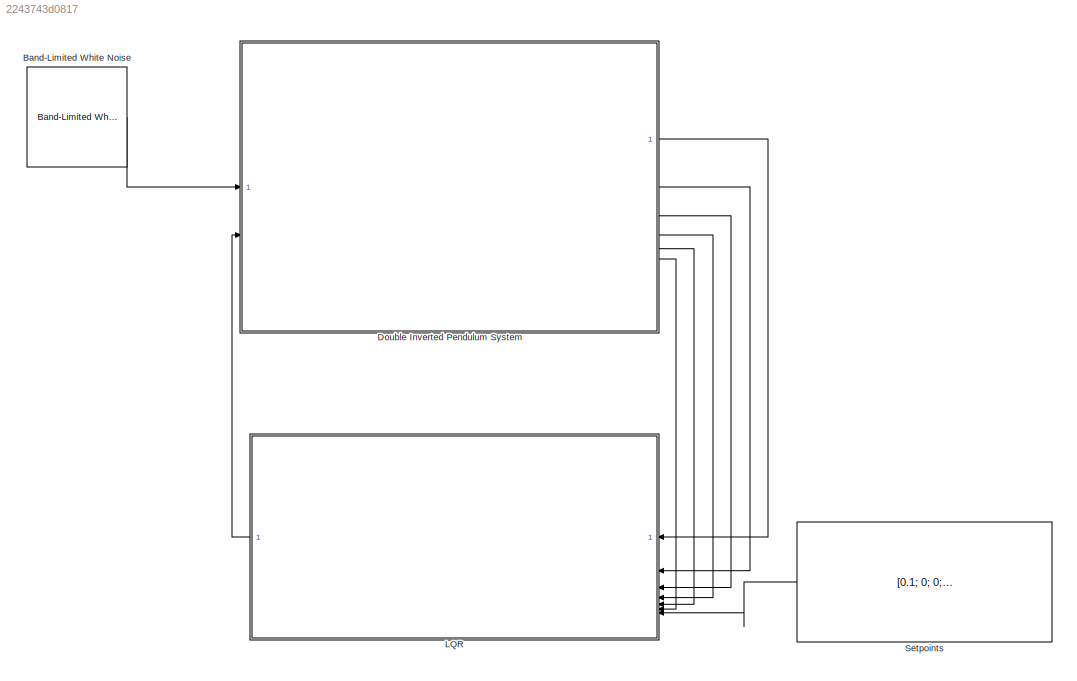
MODEL slx_2243743d0817
KIND model
CONFIG AbsTol = auto
CONFIG EnableMultiTasking = off
CONFIG FixedStep = auto
CONFIG MaxStep = auto
CONFIG MinStep = auto
CONFIG RelTol = 1e-3
CONFIG SampleTimeConstraint = Unconstrained
CONFIG SolverName = VariableStepAuto
CONFIG StartTime = 0.0
CONFIG StopTime = 20
BLOCK [Reference] Band-Limited White Noise  REF=simulink/Sources/Band-Limited
White Noise
  SourceBlock = simulink/Sources/Band-Limited\nWhite Noise
  SourceType = Band-Limited White Noise.
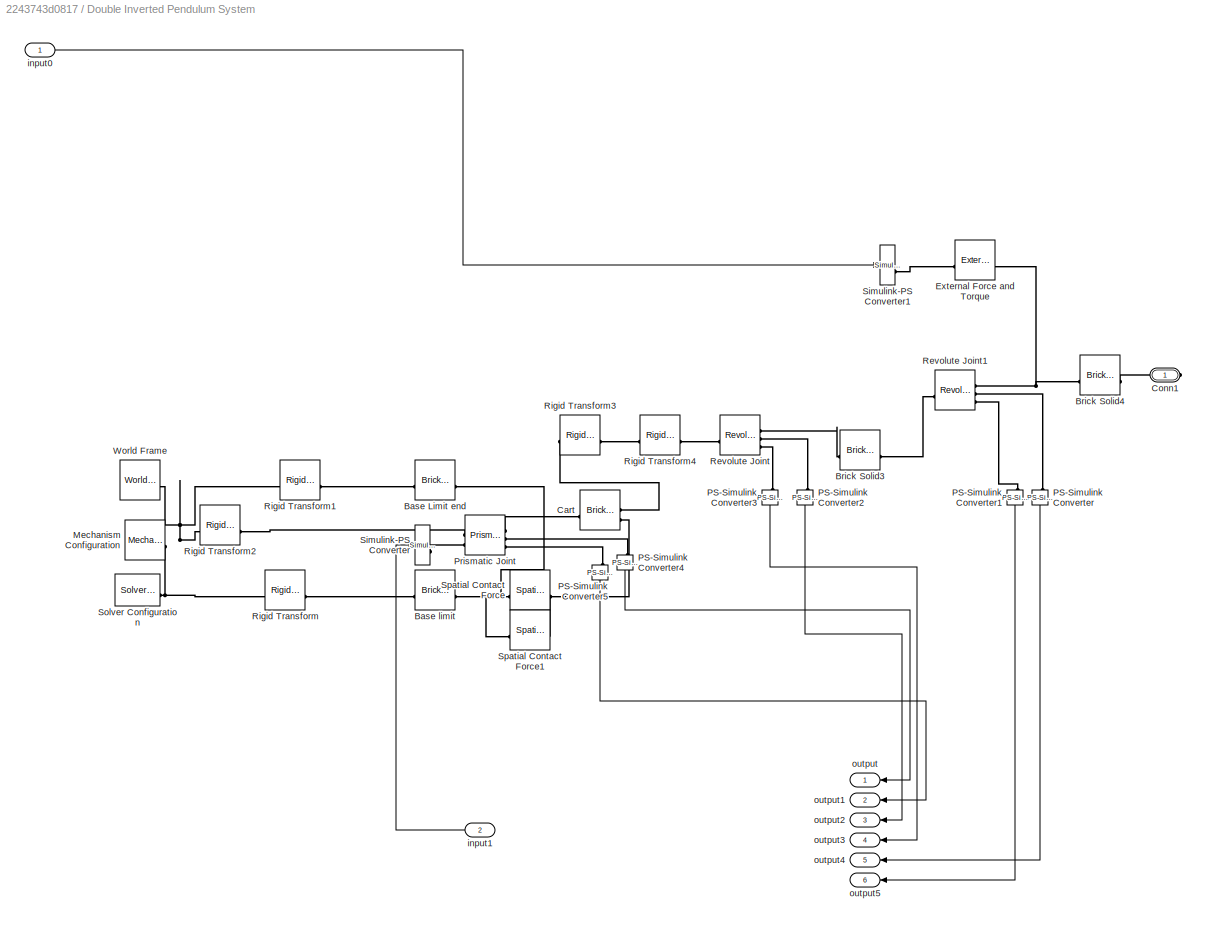
BLOCK [SubSystem] Double Inverted Pendulum System
BLOCK [Reference] Double Inverted Pendulum System/Base Limit end  REF=sm_lib/Body Elements/Brick Solid
  NameLocation = top
  SourceBlock = sm_lib/Body Elements/Brick Solid
  SourceType = Brick Solid
BLOCK [Reference] Double Inverted Pendulum System/Base limit  REF=sm_lib/Body Elements/Brick Solid
  NameLocation = top
  SourceBlock = sm_lib/Body Elements/Brick Solid
  SourceType = Brick Solid
BLOCK [Reference] Double Inverted Pendulum System/Brick Solid3  REF=sm_lib/Body Elements/Brick Solid
  SourceBlock = sm_lib/Body Elements/Brick Solid
  SourceType = Brick Solid
BLOCK [Reference] Double Inverted Pendulum System/Brick Solid4  REF=sm_lib/Body Elements/Brick Solid
  SourceBlock = sm_lib/Body Elements/Brick Solid
  SourceType = Brick Solid
BLOCK [Reference] Double Inverted Pendulum System/Cart  REF=sm_lib/Body Elements/Brick Solid
  NameLocation = top
  SourceBlock = sm_lib/Body Elements/Brick Solid
  SourceType = Brick Solid
BLOCK [PMIOPort] Double Inverted Pendulum System/Conn1
  Side = Right
BLOCK [Reference] Double Inverted Pendulum System/External Force and Torque  REF=sm_lib/Forces and
Torques/External Force
and Torque
  SourceBlock = sm_lib/Forces and\nTorques/External Force\nand Torque
  SourceType = External Force\nand Torque
BLOCK [Reference] Double Inverted Pendulum System/Mechanism Configuration  REF=sm_lib/Utilities/Mechanism
Configuration
  SourceBlock = sm_lib/Utilities/Mechanism\nConfiguration
  SourceType = Mechanism\nConfiguration
BLOCK [Reference] Double Inverted Pendulum System/PS-Simulink Converter  REF=nesl_utility/PS-Simulink
Converter
  NameLocation = left
  SourceBlock = nesl_utility/PS-Simulink\nConverter
  SourceType = PS-Simulink\nConverter
BLOCK [Reference] Double Inverted Pendulum System/PS-Simulink Converter1  REF=nesl_utility/PS-Simulink
Converter
  NameLocation = left
  SourceBlock = nesl_utility/PS-Simulink\nConverter
  SourceType = PS-Simulink\nConverter
BLOCK [Reference] Double Inverted Pendulum System/PS-Simulink Converter2  REF=nesl_utility/PS-Simulink
Converter
  NameLocation = left
  SourceBlock = nesl_utility/PS-Simulink\nConverter
  SourceType = PS-Simulink\nConverter
BLOCK [Reference] Double Inverted Pendulum System/PS-Simulink Converter3  REF=nesl_utility/PS-Simulink
Converter
  NameLocation = left
  SourceBlock = nesl_utility/PS-Simulink\nConverter
  SourceType = PS-Simulink\nConverter
BLOCK [Reference] Double Inverted Pendulum System/PS-Simulink Converter4  REF=nesl_utility/PS-Simulink
Converter
  NameLocation = left
  SourceBlock = nesl_utility/PS-Simulink\nConverter
  SourceType = PS-Simulink\nConverter
BLOCK [Reference] Double Inverted Pendulum System/PS-Simulink Converter5  REF=nesl_utility/PS-Simulink
Converter
  NameLocation = left
  SourceBlock = nesl_utility/PS-Simulink\nConverter
  SourceType = PS-Simulink\nConverter
BLOCK [Reference] Double Inverted Pendulum System/Prismatic Joint  REF=sm_lib/Joints/Prismatic
Joint
  SourceBlock = sm_lib/Joints/Prismatic\nJoint
  SourceType = Prismatic\nJoint
BLOCK [Reference] Double Inverted Pendulum System/Revolute Joint  REF=sm_lib/Joints/Revolute Joint
  SourceBlock = sm_lib/Joints/Revolute Joint
  SourceType = Revolute Joint
BLOCK [Reference] Double Inverted Pendulum System/Revolute Joint1  REF=sm_lib/Joints/Revolute Joint
  SourceBlock = sm_lib/Joints/Revolute Joint
  SourceType = Revolute Joint
BLOCK [Reference] Double Inverted Pendulum System/Rigid Transform  REF=sm_lib/Frames and
Transforms/Rigid
Transform
  SourceBlock = sm_lib/Frames and\nTransforms/Rigid\nTransform
  SourceType = Rigid\nTransform
BLOCK [Reference] Double Inverted Pendulum System/Rigid Transform1  REF=sm_lib/Frames and
Transforms/Rigid
Transform
  SourceBlock = sm_lib/Frames and\nTransforms/Rigid\nTransform
  SourceType = Rigid\nTransform
BLOCK [Reference] Double Inverted Pendulum System/Rigid Transform2  REF=sm_lib/Frames and
Transforms/Rigid
Transform
  SourceBlock = sm_lib/Frames and\nTransforms/Rigid\nTransform
  SourceType = Rigid\nTransform
BLOCK [Reference] Double Inverted Pendulum System/Rigid Transform3  REF=sm_lib/Frames and
Transforms/Rigid
Transform
  SourceBlock = sm_lib/Frames and\nTransforms/Rigid\nTransform
  SourceType = Rigid\nTransform
BLOCK [Reference] Double Inverted Pendulum System/Rigid Transform4  REF=sm_lib/Frames and
Transforms/Rigid
Transform
  SourceBlock = sm_lib/Frames and\nTransforms/Rigid\nTransform
  SourceType = Rigid\nTransform
BLOCK [Reference] Double Inverted Pendulum System/Simulink-PS Converter  REF=nesl_utility/Simulink-PS
Converter
  SourceBlock = nesl_utility/Simulink-PS\nConverter
  SourceType = Simulink-PS\nConverter
BLOCK [Reference] Double Inverted Pendulum System/Simulink-PS Converter1  REF=nesl_utility/Simulink-PS
Converter
  SourceBlock = nesl_utility/Simulink-PS\nConverter
  SourceType = Simulink-PS\nConverter
BLOCK [Reference] Double Inverted Pendulum System/Solver Configuration  REF=nesl_utility/Solver
Configuration
  SourceBlock = nesl_utility/Solver\nConfiguration
  SourceType = Solver\nConfiguration
BLOCK [Reference] Double Inverted Pendulum System/Spatial Contact Force  REF=sm_lib/Forces and
Torques/Spatial
Contact Force
  SourceBlock = sm_lib/Forces and\nTorques/Spatial\nContact Force
  SourceType = Spatial\nContact Force
BLOCK [Reference] Double Inverted Pendulum System/Spatial Contact Force1  REF=sm_lib/Forces and
Torques/Spatial
Contact Force
  SourceBlock = sm_lib/Forces and\nTorques/Spatial\nContact Force
  SourceType = Spatial\nContact Force
BLOCK [Reference] Double Inverted Pendulum System/World Frame  REF=sm_lib/Frames and
Transforms/World Frame
  SourceBlock = sm_lib/Frames and\nTransforms/World Frame
  SourceType = World Frame
BLOCK [Inport] Double Inverted Pendulum System/input0
BLOCK [Inport] Double Inverted Pendulum System/input1
  Port = 2
BLOCK [Outport] Double Inverted Pendulum System/output
BLOCK [Outport] Double Inverted Pendulum System/output1
  Port = 2
BLOCK [Outport] Double Inverted Pendulum System/output2
  Port = 3
BLOCK [Outport] Double Inverted Pendulum System/output3
  Port = 4
BLOCK [Outport] Double Inverted Pendulum System/output4
  Port = 5
BLOCK [Outport] Double Inverted Pendulum System/output5
  Port = 6
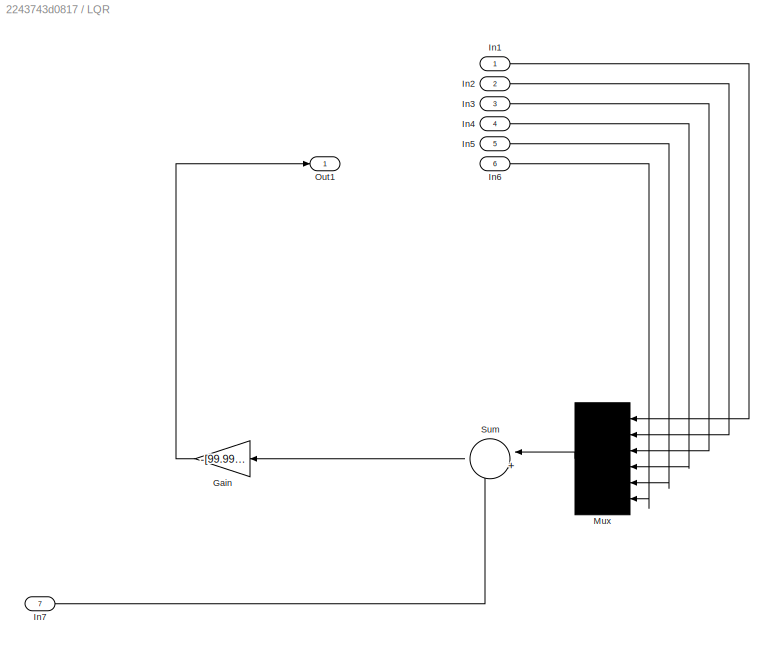
BLOCK [SubSystem] LQR
  NameLocation = top
BLOCK [Gain] LQR/Gain
  Gain = -[99.999999999993406	1.292901942816513e+02	7.663871178288636e+02	2.632083448010755e+02	2.517434941372035e+03	2.802747363474891e+02]
  Multiplication = Matrix(K*u)
  NameLocation = top
BLOCK [Inport] LQR/In1
BLOCK [Inport] LQR/In2
  Port = 2
BLOCK [Inport] LQR/In3
  Port = 3
BLOCK [Inport] LQR/In4
  Port = 4
BLOCK [Inport] LQR/In5
  Port = 5
BLOCK [Inport] LQR/In6
  Port = 6
BLOCK [Inport] LQR/In7
  Port = 7
BLOCK [Mux] LQR/Mux
  DisplayOption = signals
  Inputs = 6
  NameLocation = top
BLOCK [Outport] LQR/Out1
BLOCK [Sum] LQR/Sum
  Inputs = |+-
  NameLocation = top
BLOCK [Constant] Setpoints
  NameLocation = top
  Value = [0.1; 0; 0; 0; 0; 0]
LINE Band-Limited White Noise:1 -> Double Inverted Pendulum System:1
LINE Double Inverted Pendulum System/PS-Simulink Converter1:1 -> Double Inverted Pendulum System/output5:1
LINE Double Inverted Pendulum System/PS-Simulink Converter2:1 -> Double Inverted Pendulum System/output2:1
LINE Double Inverted Pendulum System/PS-Simulink Converter3:1 -> Double Inverted Pendulum System/output3:1
LINE Double Inverted Pendulum System/PS-Simulink Converter4:1 -> Double Inverted Pendulum System/output:1
LINE Double Inverted Pendulum System/PS-Simulink Converter5:1 -> Double Inverted Pendulum System/output1:1
LINE Double Inverted Pendulum System/PS-Simulink Converter:1 -> Double Inverted Pendulum System/output4:1
LINE Double Inverted Pendulum System/input0:1 -> Double Inverted Pendulum System/Simulink-PS Converter1:1
LINE Double Inverted Pendulum System/input1:1 -> Double Inverted Pendulum System/Simulink-PS Converter:1
LINE Double Inverted Pendulum System:1 -> LQR:1
LINE Double Inverted Pendulum System:2 -> LQR:2
LINE Double Inverted Pendulum System:3 -> LQR:3
LINE Double Inverted Pendulum System:4 -> LQR:4
LINE Double Inverted Pendulum System:5 -> LQR:5
LINE Double Inverted Pendulum System:6 -> LQR:6
LINE LQR/Gain:1 -> LQR/Out1:1
LINE LQR/In1:1 -> LQR/Mux:1
LINE LQR/In2:1 -> LQR/Mux:2
LINE LQR/In3:1 -> LQR/Mux:3
LINE LQR/In4:1 -> LQR/Mux:4
LINE LQR/In5:1 -> LQR/Mux:5
LINE LQR/In6:1 -> LQR/Mux:6
LINE LQR/In7:1 -> LQR/Sum:2
LINE LQR/Mux:1 -> LQR/Sum:1
LINE LQR/Sum:1 -> LQR/Gain:1
LINE LQR:1 -> Double Inverted Pendulum System:2
LINE Setpoints:1 -> LQR:7
PLINE Double Inverted Pendulum System/Base Limit end:LConn1 -- Double Inverted Pendulum System/Spatial Contact Force:LConn1
PLINE Double Inverted Pendulum System/Base Limit end:RConn1 -- Double Inverted Pendulum System/Rigid Transform1:RConn1
PLINE Double Inverted Pendulum System/Base limit:LConn1 -- Double Inverted Pendulum System/Spatial Contact Force1:LConn1
PLINE Double Inverted Pendulum System/Base limit:RConn1 -- Double Inverted Pendulum System/Rigid Transform:RConn1
PLINE Double Inverted Pendulum System/Brick Solid3:LConn1 -- Double Inverted Pendulum System/Revolute Joint:RConn1
PLINE Double Inverted Pendulum System/Brick Solid3:RConn1 -- Double Inverted Pendulum System/Revolute Joint1:LConn1
PNET net1: Double Inverted Pendulum System/Brick Solid4:LConn1 -- Double Inverted Pendulum System/External Force and Torque:RConn1 -- Double Inverted Pendulum System/Revolute Joint1:RConn1
PLINE Double Inverted Pendulum System/Brick Solid4:RConn1 -- Double Inverted Pendulum System/Conn1:RConn1
PLINE Double Inverted Pendulum System/Cart:LConn1 -- Double Inverted Pendulum System/Rigid Transform3:LConn1
PNET net2: Double Inverted Pendulum System/Cart:LConn2 -- Double Inverted Pendulum System/Spatial Contact Force1:RConn1 -- Double Inverted Pendulum System/Spatial Contact Force:RConn1
PLINE Double Inverted Pendulum System/Cart:RConn1 -- Double Inverted Pendulum System/Prismatic Joint:RConn1
PLINE Double Inverted Pendulum System/External Force and Torque:LConn1 -- Double Inverted Pendulum System/Simulink-PS Converter1:RConn1
PNET net3: Double Inverted Pendulum System/Mechanism Configuration:RConn1 -- Double Inverted Pendulum System/Rigid Transform1:LConn1 -- Double Inverted Pendulum System/Rigid Transform2:LConn1 -- Double Inverted Pendulum System/Rigid Transform:LConn1 -- Double Inverted Pendulum System/Solver Configuration:RConn1 -- Double Inverted Pendulum System/World Frame:RConn1
PLINE Double Inverted Pendulum System/PS-Simulink Converter1:LConn1 -- Double Inverted Pendulum System/Revolute Joint1:RConn3
PLINE Double Inverted Pendulum System/PS-Simulink Converter2:LConn1 -- Double Inverted Pendulum System/Revolute Joint:RConn2
PLINE Double Inverted Pendulum System/PS-Simulink Converter3:LConn1 -- Double Inverted Pendulum System/Revolute Joint:RConn3
PLINE Double Inverted Pendulum System/PS-Simulink Converter4:LConn1 -- Double Inverted Pendulum System/Prismatic Joint:RConn2
PLINE Double Inverted Pendulum System/PS-Simulink Converter5:LConn1 -- Double Inverted Pendulum System/Prismatic Joint:RConn3
PLINE Double Inverted Pendulum System/PS-Simulink Converter:LConn1 -- Double Inverted Pendulum System/Revolute Joint1:RConn2
PLINE Double Inverted Pendulum System/Prismatic Joint:LConn1 -- Double Inverted Pendulum System/Rigid Transform2:RConn1
PLINE Double Inverted Pendulum System/Prismatic Joint:LConn2 -- Double Inverted Pendulum System/Simulink-PS Converter:RConn1
PLINE Double Inverted Pendulum System/Revolute Joint:LConn1 -- Double Inverted Pendulum System/Rigid Transform4:RConn1
PLINE Double Inverted Pendulum System/Rigid Transform3:RConn1 -- Double Inverted Pendulum System/Rigid Transform4:LConn1
note: PNET lines group multi-terminal physical nets as a canonical sorted terminal list (undirected conserving connections); 2-terminal nets keep the pairwise PLINE form
